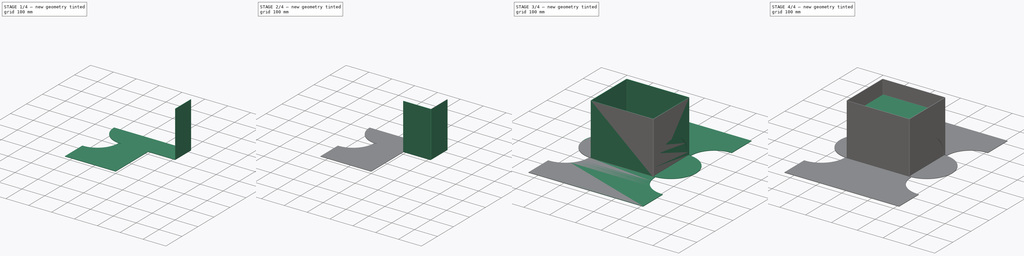
[diagram: build sequence overview — one tinted view per stage of 4, left to right]
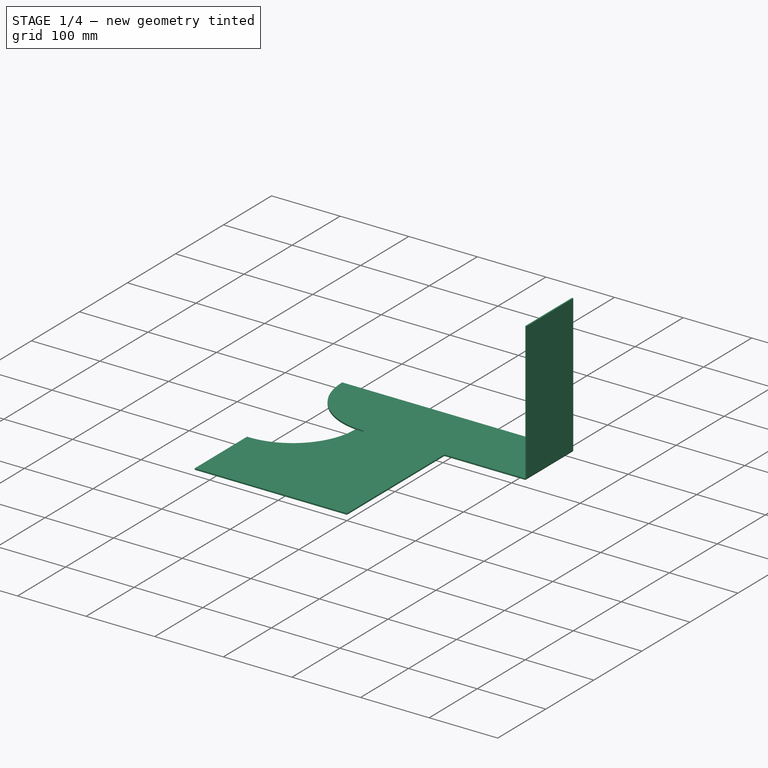
[diagram: stage 1 of 4 — iso view after this stage's code; geometry added in this stage tinted green]
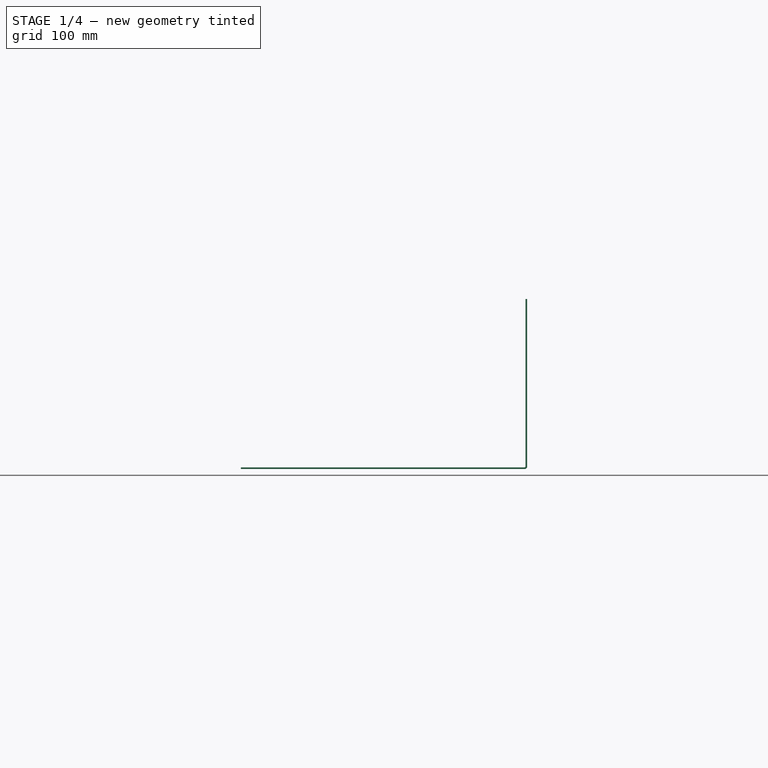
[diagram: stage 1 of 4 — front view after this stage's code; geometry added in this stage tinted green]
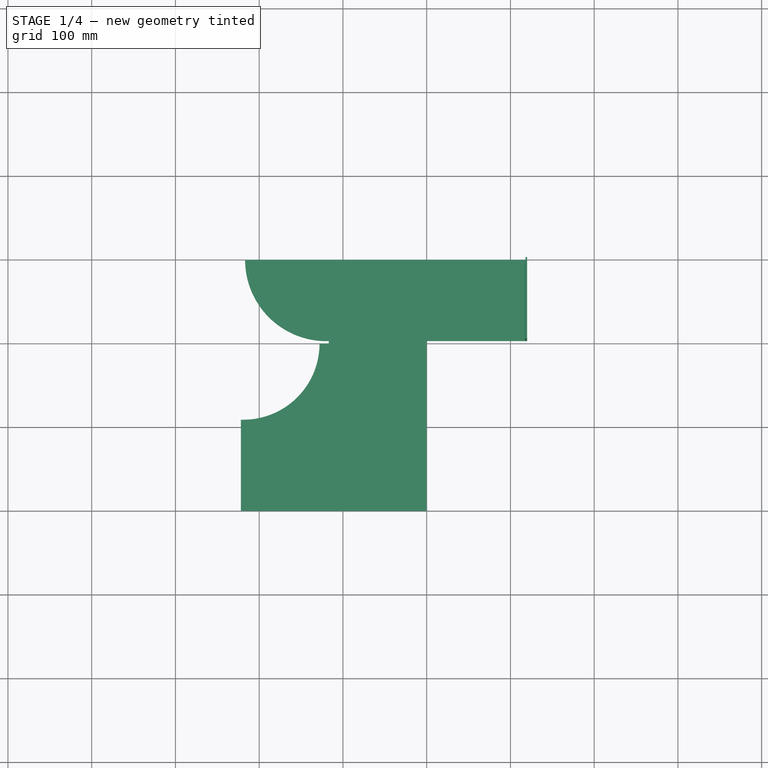
[diagram: stage 1 of 4 — top view after this stage's code; geometry added in this stage tinted green]
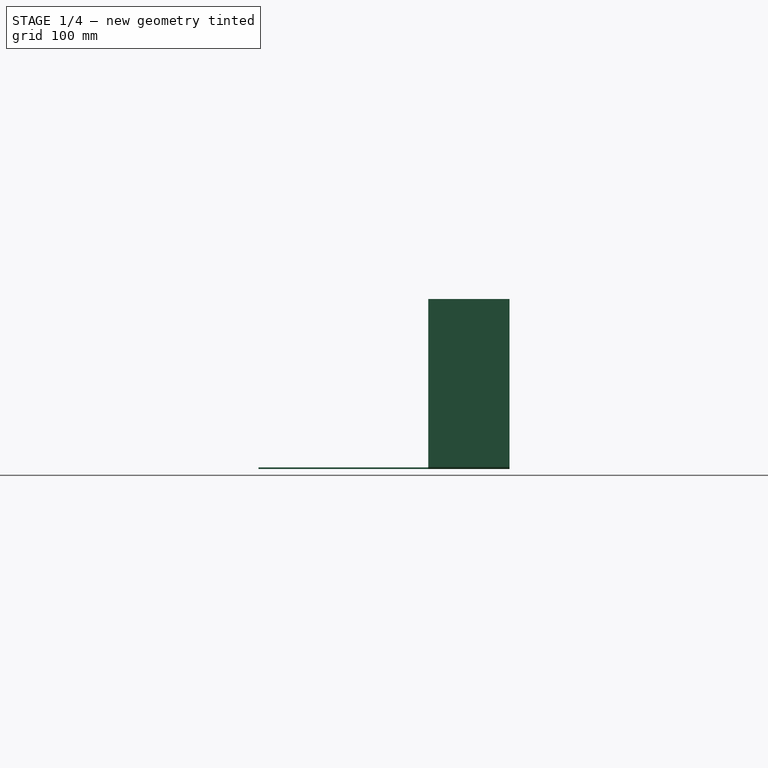
[diagram: stage 1 of 4 — right view after this stage's code; geometry added in this stage tinted green]
FCSTD DOCUMENT  (FreeCAD 1.0R39109 (Git))
Label: lunch bag
License: All rights reserved
objects: PartDesign::FeaturePython×7, Sketcher::SketchObject×5, PartDesign::Body×4, PartDesign::Mirrored×4, PartDesign::Pad×2, PartDesign::MultiTransform×2, TechDraw::DrawSVGTemplate×2, TechDraw::DrawProjGroupItem×2, TechDraw::DrawPage×2, PartDesign::Fillet×1, PartDesign::SubShapeBinder×1, PartDesign::FeatureBase×1
note: 52 computed .brp shape members not serialized (recipe doc carries the construction recipe); baked Part::Feature solids carry a one-line shape summary decoded from their .brp

FEATURE [PartDesign::Body] Body
  AllowCompound = true
  Group = -> [Sketch,Pad,Fillet]
  Origin = -> Origin
  Tip = -> Fillet
FEATURE [Sketcher::SketchObject] Sketch001
  ArcFitTolerance = 1e-06
  AttachmentSupport = -> [YZ_Plane001]
  FullyConstrained = true
  MakeInternals = false
  MapMode = 5
  Placement = pos=(0,0,0) rot=(0.57735,0.57735,0.57735;2.0944rad)
  sketch-geometry (1):
    g0: LineSegment StartX=0 StartY=0 StartZ=0 EndX=-97 EndY=0 EndZ=0
  constraints (3):
    c: Coincident(g0,g-1)
    c: PointOnObject(g0,g-1)
    c: DistanceX(g0,g0) = 97
FEATURE [PartDesign::FeaturePython] BaseBend  # WARN: FeaturePython — macro-defined, semantics opaque (R4)
  BendSide = 0
  BendSketch = -> Sketch001
  Length = 117
  MidPlane = false
  Radius = 1
  Reverse = false
  Suppressed = false
  Thickness = 2
FEATURE [PartDesign::FeaturePython] Bend  # WARN: FeaturePython — macro-defined, semantics opaque (R4)
  AutoMiter = true
  BaseFeature = -> BaseBend
  BendType = 0
  LengthList = [200]
  LengthSpec = 0
  NonperforationMaxLength = 5
  Perforate = false
  PerforationAngle = 0
  PerforationInitialLength = 5
  PerforationMaxLength = 5
  ReliefFactor = 0.7
  Suppressed = false
  UseReliefFactor = false
  angle = 90
  baseObject = -> BaseBend [Edge9]
  bendAList = [90]
  extend1 = 0
  extend2 = 0
  gap1 = 0
  gap2 = 0
  invert = false
  kfactor = 0.5
  length = 200
  maxExtendDist = 5
  minGap = 0.2
  minReliefGap = 1
  miterangle1 = 0
  miterangle2 = 0
  offset = 0
  radius = 1
  reliefType = 0
  reliefd = 1
  reliefw = 0.8
  sketchflip = false
  sketchinvert = false
  unfold = false
FEATURE [Sketcher::SketchObject] Unfold_Sketch
  ArcFitTolerance = 1e-06
  FullyConstrained = false
  MakeInternals = false
  sketch-geometry (13):
    g0: ArcOfCircle CenterX=-119.827 CenterY=0 CenterZ=0 NormalX=0 NormalY=0 NormalZ=1 AngleXU=1.5708 Radius=97 StartAngle=1.5708 EndAngle=3.14159
    g1: LineSegment StartX=-119.827 StartY=-97 StartZ=0 EndX=-117 EndY=-97 EndZ=0
    g2: LineSegment StartX=-117 StartY=-99.8274 StartZ=0 EndX=-117 EndY=-97 EndZ=0
    g3: LineSegment StartX=-127.927 StartY=-99.8274 StartZ=0 EndX=-117 EndY=-99.8274 EndZ=0
    g4: ArcOfCircle CenterX=-218.927 CenterY=-99.8274 CenterZ=0 NormalX=0 NormalY=0 NormalZ=1 AngleXU=-1e-16 Radius=91 StartAngle=4.71239 EndAngle=6.28319
    g5: LineSegment StartX=-218.927 StartY=-190.827 StartZ=0 EndX=-221.927 EndY=-190.827 EndZ=0
    g6: LineSegment StartX=-221.927 StartY=-299.827 StartZ=0 EndX=-221.927 EndY=-190.827 EndZ=0
    g7: LineSegment StartX=0 StartY=-299.827 StartZ=0 EndX=-221.927 EndY=-299.827 EndZ=0
    g8: LineSegment StartX=0 StartY=0 StartZ=0 EndX=0 EndY=-299.827 EndZ=0
    g9: LineSegment StartX=0 StartY=0 StartZ=0 EndX=-216.827 EndY=0 EndZ=0
    g10: LineSegment StartX=-120.514 StartY=-299.827 StartZ=0 EndX=-120.514 EndY=-99.8274 EndZ=0
    g11: LineSegment StartX=0 StartY=-98.4137 StartZ=0 EndX=-117 EndY=-98.4137 EndZ=0
    g12: LineSegment StartX=-118.414 StartY=0 StartZ=0 EndX=-118.414 EndY=-97 EndZ=0
FEATURE [PartDesign::Body] Body001
  AllowCompound = true
  Group = -> [Sketch001,BaseBend,Bend,Sketch002,ExtrudedCutout,Bend001,Bend002,Sketch003,ExtrudedCutout001,Unfold,Unfold_Sketch]
  Origin = -> Origin001
  Tip = -> Unfold
FEATURE [PartDesign::SubShapeBinder] Binder
  BindCopyOnChange = 0
  BindMode = 0
  ClaimChildren = false
  Context = -> Body001 [Binder.]
  Fuse = false
  MakeFace = true
  OffsetFill = false
  OffsetIntersection = false
  OffsetJoinType = 0
  OffsetOpenResult = false
  PartialLoad = false
  Relative = true
  Support = -> [Unfold_Sketch[Edge9,Edge8,Edge7,Edge6,Edge5,Edge4,Edge3,Edge2]]
  _Version = 2
FEATURE [PartDesign::Pad] Pad001
  Direction = (0,0,1)
  Length = 2
  Length2 = 10
  Profile = -> Binder
  Suppressed = false
  Type = 0
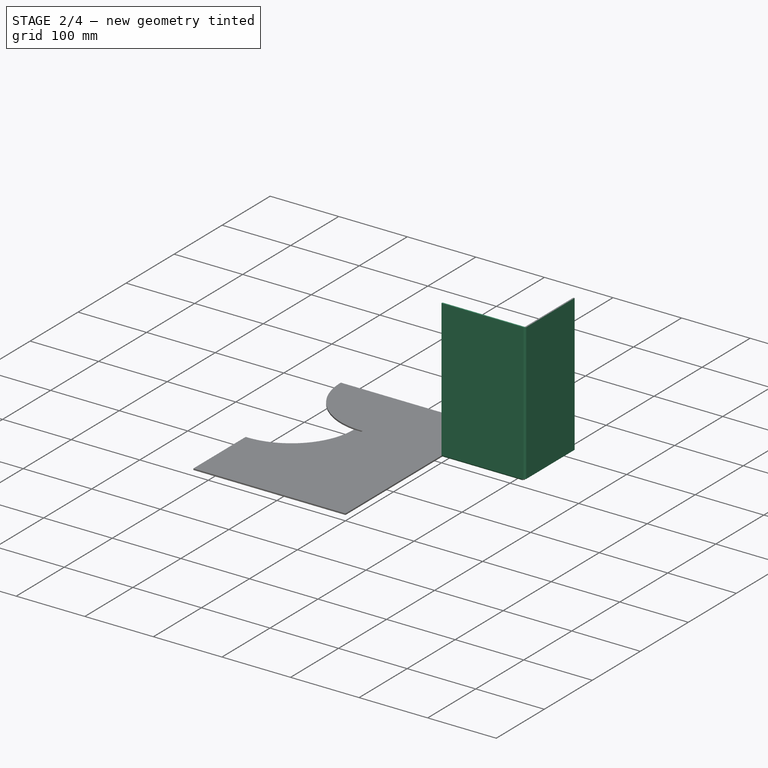
[diagram: stage 2 of 4 — iso view after this stage's code; geometry added in this stage tinted green]
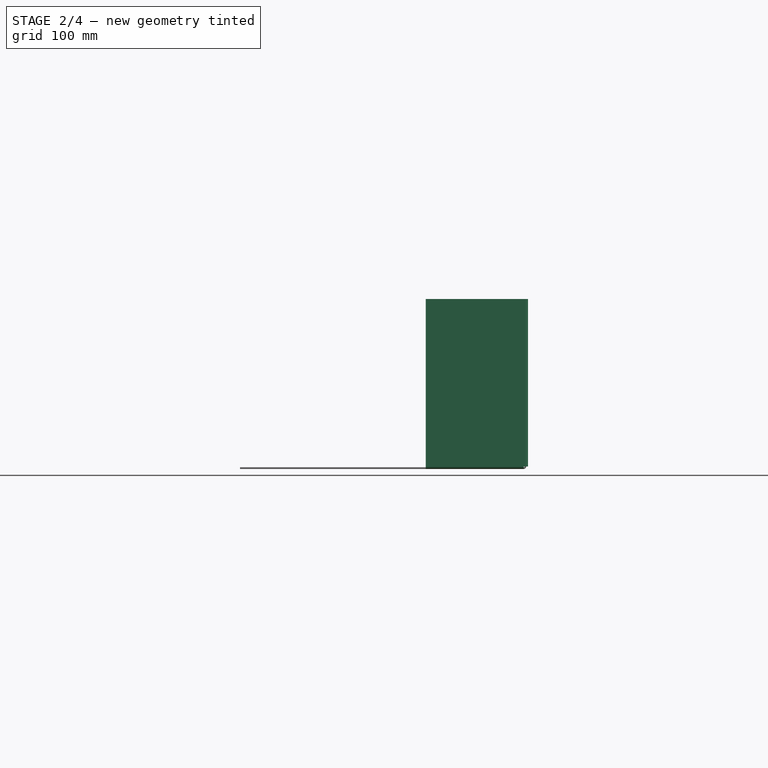
[diagram: stage 2 of 4 — front view after this stage's code; geometry added in this stage tinted green]
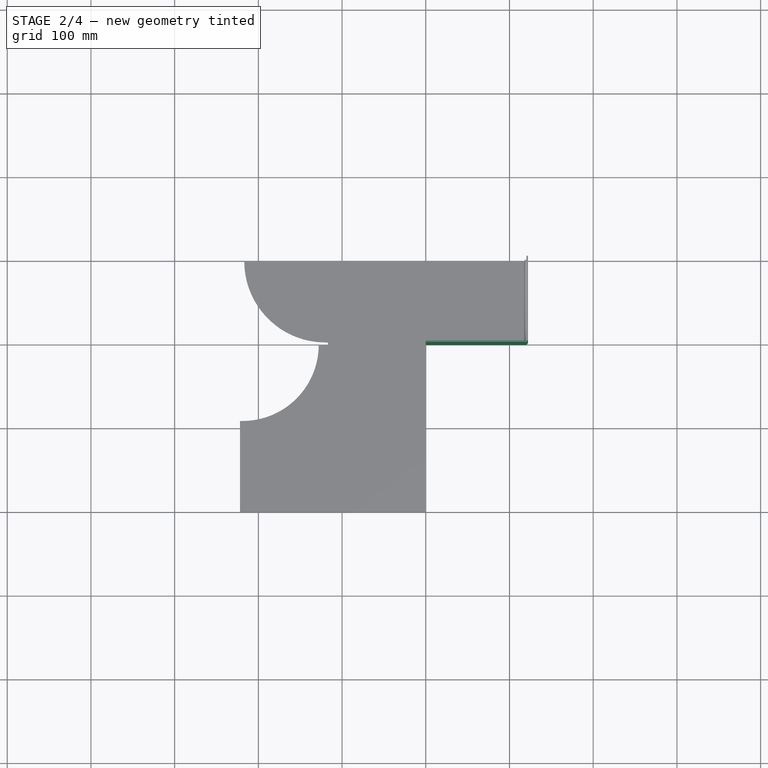
[diagram: stage 2 of 4 — top view after this stage's code; geometry added in this stage tinted green]
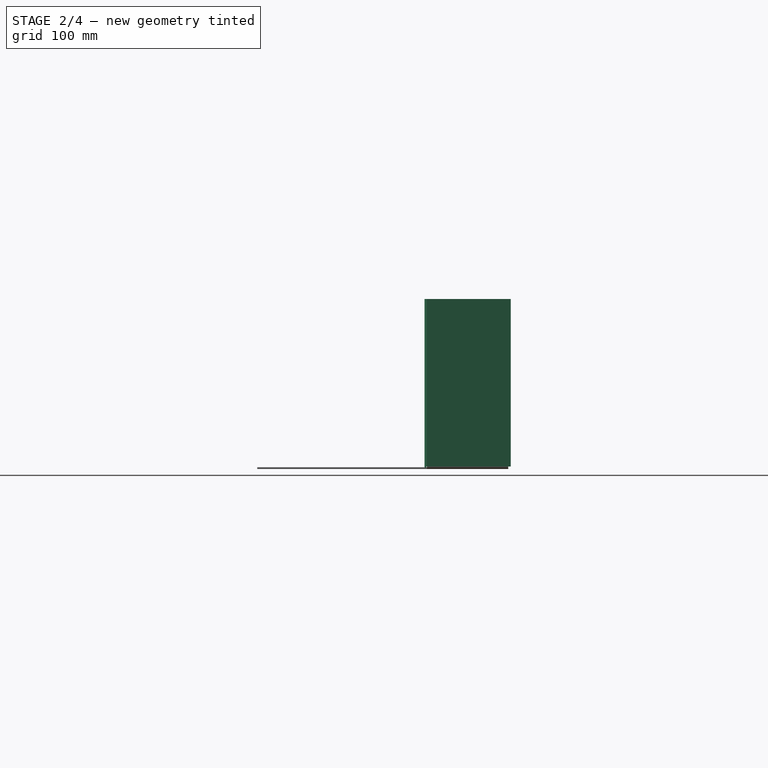
[diagram: stage 2 of 4 — right view after this stage's code; geometry added in this stage tinted green]
FEATURE [Sketcher::SketchObject] Sketch002
  ArcFitTolerance = 1e-06
  AttachmentSupport = -> [Bend]
  ExternalGeometry = -> [Bend]
  FullyConstrained = true
  MakeInternals = false
  MapMode = 5
  Placement = pos=(120,0,-1.33e-14) rot=(0.57735,0.57735,0.57735;2.0944rad)
  sketch-geometry (4):
    g0: ArcOfCircle CenterX=0 CenterY=3 CenterZ=0 NormalX=0 NormalY=0 NormalZ=1 AngleXU=0 Radius=97 StartAngle=1.5708 EndAngle=3.14159
    g1: LineSegment StartX=5.9e-15 StartY=100 StartZ=0 EndX=0 EndY=203 EndZ=0
    g2: LineSegment StartX=0 StartY=203 StartZ=0 EndX=-97 EndY=203 EndZ=0
    g3: LineSegment StartX=-97 StartY=203 StartZ=0 EndX=-97 EndY=3 EndZ=0
  constraints (9):
    c: Coincident(g0,g-3)
    c: Coincident(g0,g-3)
    c: PointOnObject(g0,g-2)
    c: Coincident(g1,g0)
    c: Coincident(g1,g-4)
    c: Coincident(g2,g1)
    c: Coincident(g2,g-4)
    c: Coincident(g3,g2)
    c: Coincident(g3,g0)
FEATURE [PartDesign::FeaturePython] ExtrudedCutout  # WARN: FeaturePython — macro-defined, semantics opaque (R4)
  BaseFeature = -> Bend
  CutSide = 0
  CutType = 2
  ExtrusionLength1 = 500
  ExtrusionLength2 = 500
  ImproveCut = false
  ImproveLevel = 4
  Sketch = -> Sketch002
  Suppressed = false
  baseObject = -> Bend [Face9]
FEATURE [PartDesign::FeaturePython] Bend001  # WARN: FeaturePython — macro-defined, semantics opaque (R4)
  AutoMiter = true
  BaseFeature = -> ExtrudedCutout
  BendType = 0
  LengthList = [200]
  LengthSpec = 0
  NonperforationMaxLength = 5
  Perforate = false
  PerforationAngle = 0
  PerforationInitialLength = 5
  PerforationMaxLength = 5
  ReliefFactor = 0.7
  Suppressed = false
  UseReliefFactor = false
  angle = 90
  baseObject = -> ExtrudedCutout [Edge9]
  bendAList = [90]
  extend1 = 0
  extend2 = 2.1
  gap1 = 0
  gap2 = 0
  invert = false
  kfactor = 0.5
  length = 200
  maxExtendDist = 5
  minGap = 0.2
  minReliefGap = 1
  miterangle1 = 0
  miterangle2 = 0
  offset = 0
  radius = 1
  reliefType = 0
  reliefd = 1
  reliefw = 0.8
  sketchflip = false
  sketchinvert = false
  unfold = false
FEATURE [PartDesign::FeaturePython] Bend002  # WARN: FeaturePython — macro-defined, semantics opaque (R4)
  AutoMiter = true
  BaseFeature = -> Bend001
  BendType = 0
  LengthList = [100]
  LengthSpec = 0
  NonperforationMaxLength = 5
  Perforate = false
  PerforationAngle = 0
  PerforationInitialLength = 5
  PerforationMaxLength = 5
  ReliefFactor = 0.7
  Suppressed = false
  UseReliefFactor = false
  angle = 90
  baseObject = -> Bend001 [Edge43]
  bendAList = [90]
  extend1 = 0
  extend2 = 0
  gap1 = 0
  gap2 = 0
  invert = false
  kfactor = 0.5
  length = 100
  maxExtendDist = 5
  minGap = 0.2
  minReliefGap = 1
  miterangle1 = 0
  miterangle2 = 0
  offset = 0
  radius = 1
  reliefType = 0
  reliefd = 1
  reliefw = 0.8
  sketchflip = false
  sketchinvert = false
  unfold = false
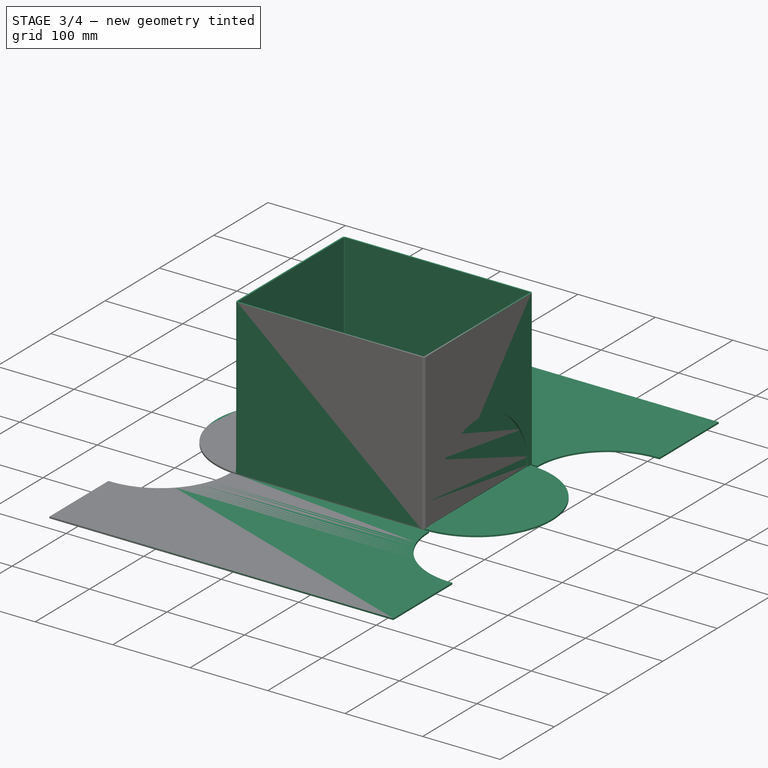
[diagram: stage 3 of 4 — iso view after this stage's code; geometry added in this stage tinted green]
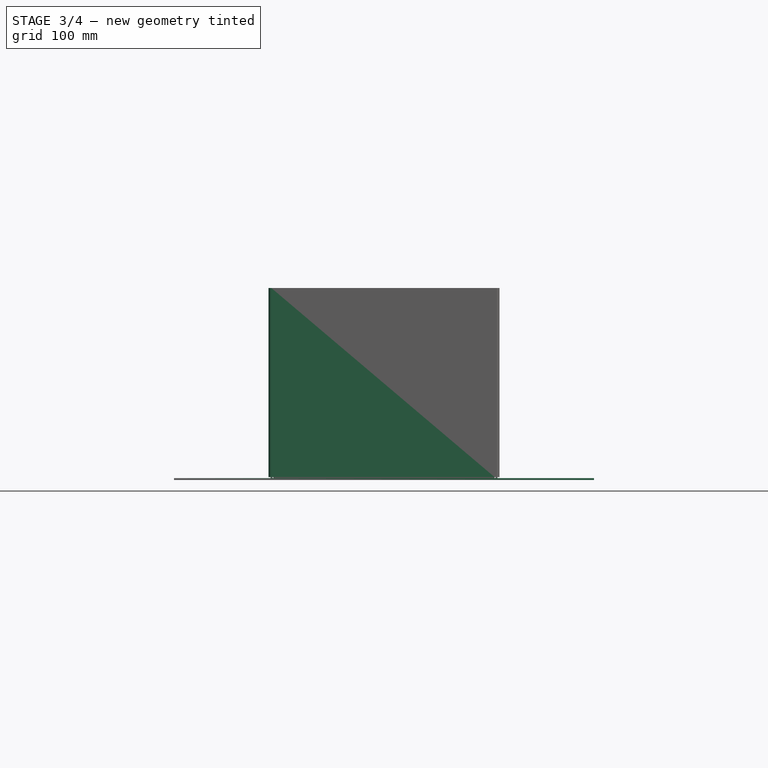
[diagram: stage 3 of 4 — front view after this stage's code; geometry added in this stage tinted green]
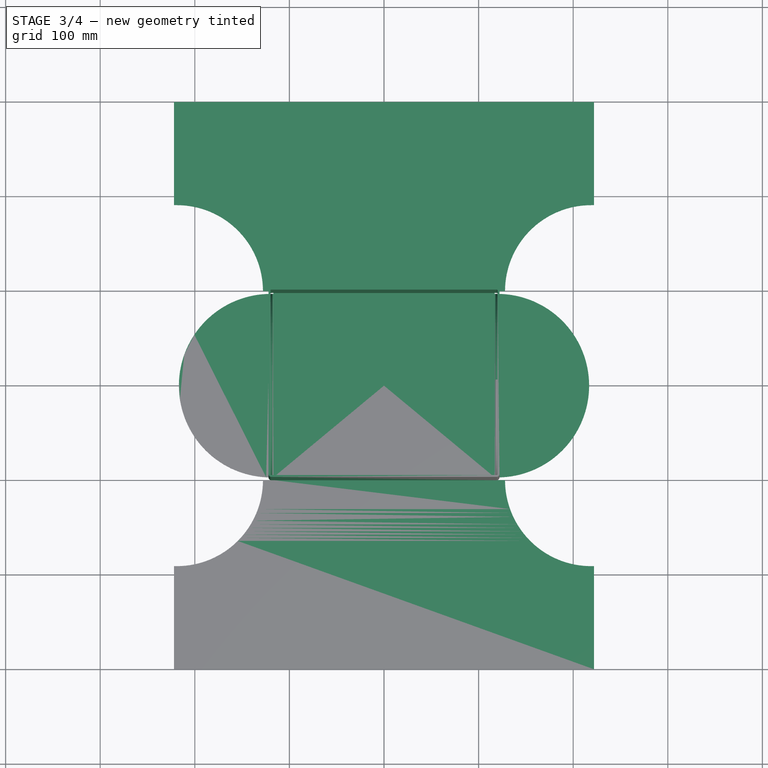
[diagram: stage 3 of 4 — top view after this stage's code; geometry added in this stage tinted green]
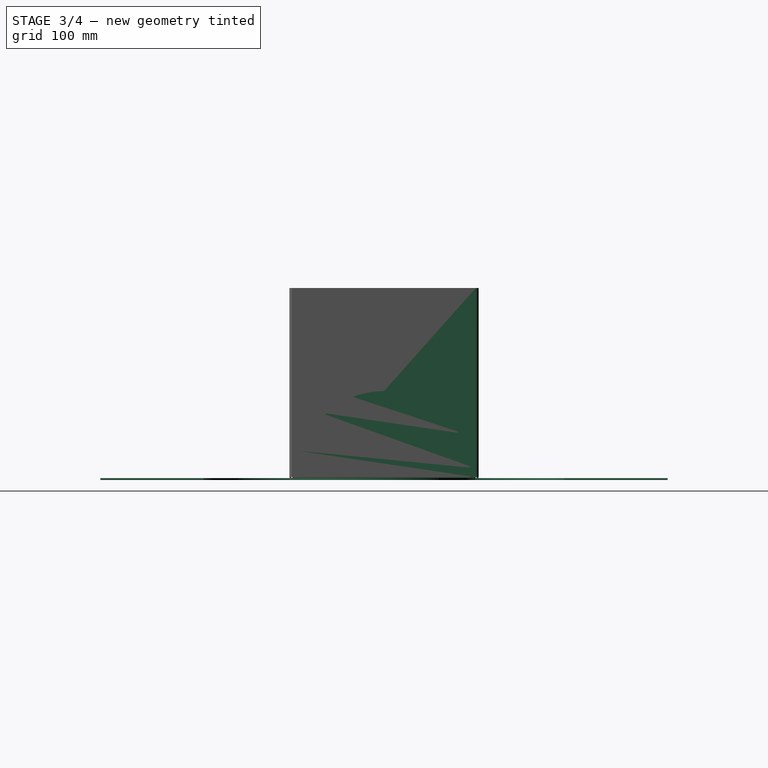
[diagram: stage 3 of 4 — right view after this stage's code; geometry added in this stage tinted green]
FEATURE [Sketcher::SketchObject] Sketch003
  ArcFitTolerance = 1e-06
  AttachmentSupport = -> [Bend002]
  ExternalGeometry = -> [Sketch002,Bend002]
  FullyConstrained = true
  MakeInternals = false
  MapMode = 5
  Placement = pos=(120.1,-1.33e-14,8.5e-15) rot=(0.57735,-0.57735,-0.57735;2.0944rad)
  sketch-geometry (5):
    g0: LineSegment StartX=91 StartY=3 StartZ=0 EndX=-1.42e-14 EndY=3 EndZ=0
    g1: LineSegment StartX=-1.42e-14 StartY=3 StartZ=0 EndX=-3 EndY=3 EndZ=0
    g2: LineSegment StartX=-3 StartY=3 StartZ=0 EndX=-3 EndY=94 EndZ=0
    g3: LineSegment StartX=-3 StartY=94 StartZ=0 EndX=-8.4e-15 EndY=94 EndZ=0
    g4: ArcOfCircle CenterX=-1.42e-14 CenterY=3 CenterZ=0 NormalX=0 NormalY=0 NormalZ=1 AngleXU=0 Radius=91 StartAngle=0 EndAngle=1.5708
  constraints (15):
    c: Coincident(g2,g1)
    c: Vertical(g2)
    c: Coincident(g3,g2)
    c: Horizontal(g3)
    c: Horizontal(g1)
    c: PointOnObject(g2,g-4)
    c: PointOnObject(g3,g-2)
    c: Distance(g3,g3) = 3
    c: Coincident(g4,g0)
    c: Coincident(g4,g0)
    c: Coincident(g4,g3)
    c: Horizontal(g0)
    c: Coincident(g0,g1)
    c: Coincident(g0,g-3)
    c: Distance(g0,g-3) = 6
FEATURE [PartDesign::FeaturePython] ExtrudedCutout001  # WARN: FeaturePython — macro-defined, semantics opaque (R4)
  BaseFeature = -> Bend002
  CutSide = 0
  CutType = 4
  ExtrusionLength1 = 500
  ExtrusionLength2 = 500
  ImproveCut = false
  ImproveLevel = 4
  Sketch = -> Sketch003
  Suppressed = false
  baseObject = -> Bend002 [Face30]
FEATURE [PartDesign::Mirrored] Mirrored
  MirrorPlane = -> YZ_Plane002
  Suppressed = false
  TransformMode = 0
FEATURE [PartDesign::Mirrored] Mirrored001
  MirrorPlane = -> XZ_Plane002
  Suppressed = false
  TransformMode = 0
FEATURE [PartDesign::MultiTransform] MultiTransform
  BaseFeature = -> Pad001
  Refine = true
  Suppressed = false
  TransformMode = 1
  Transformations = -> [Mirrored,Mirrored001]
FEATURE [PartDesign::Body] Body002
  AllowCompound = true
  Group = -> [Binder,Pad001,MultiTransform,Mirrored,Mirrored001]
  Origin = -> Origin002
  Tip = -> MultiTransform
FEATURE [TechDraw::DrawSVGTemplate] Template
  Height = 297
  Orientation = 1
  Template = /Applications/FreeCAD.app/Contents/Resources/share/Mod/TechDraw/Templates/A3_Landscape_blank.svg
  Width = 420
FEATURE [PartDesign::FeatureBase] Clone
  BaseFeature = -> ExtrudedCutout001
  Suppressed = false
FEATURE [PartDesign::Mirrored] Mirrored002
  MirrorPlane = -> YZ_Plane004
  Suppressed = false
  TransformMode = 0
FEATURE [PartDesign::Mirrored] Mirrored003
  MirrorPlane = -> XZ_Plane004
  Suppressed = false
  TransformMode = 0
FEATURE [PartDesign::MultiTransform] MultiTransform001
  BaseFeature = -> Clone
  Refine = true
  Suppressed = false
  TransformMode = 1
  Transformations = -> [Mirrored002,Mirrored003]
FEATURE [PartDesign::Body] Body004
  AllowCompound = true
  Group = -> [Clone,MultiTransform001,Mirrored002,Mirrored003]
  Origin = -> Origin004
  Tip = -> MultiTransform001
FEATURE [TechDraw::DrawProjGroupItem] View
  CoarseView = false
  Direction = (0,0,1)
  Focus = 100
  HardHidden = false
  IsoCount = 0
  IsoHidden = false
  IsoVisible = false
  LockPosition = false
  Perspective = false
  Rotation = 0
  RotationVector = (1,0,0)
  ScaleType = 0
  ScrubCount = 1
  SeamHidden = false
  SeamVisible = false
  SmoothHidden = false
  SmoothVisible = true
  Source = -> [Pad001]
  Type = 0
  X = 210
  XDirection = (1e-16,1,0)
  Y = 148.5
FEATURE [TechDraw::DrawPage] Page
  KeepUpdated = true
  NextBalloonIndex = 1
  ProjectionType = 0
  Template = -> Template
  Views = -> [View]
FEATURE [TechDraw::DrawSVGTemplate] Template001
  Height = 297
  Orientation = 1
  Template = /Applications/FreeCAD.app/Contents/Resources/share/Mod/TechDraw/Templates/A3_Landscape_blank.svg
  Width = 420
FEATURE [TechDraw::DrawProjGroupItem] View001
  CoarseView = false
  Direction = (0,0,-1)
  Focus = 100
  HardHidden = false
  IsoCount = 0
  IsoHidden = false
  IsoVisible = false
  LockPosition = false
  Perspective = false
  Rotation = 0
  RotationVector = (1,0,0)
  ScaleType = 0
  ScrubCount = 1
  SeamHidden = false
  SeamVisible = false
  SmoothHidden = false
  SmoothVisible = true
  Source = -> [Pad001]
  Type = 0
  X = 210
  XDirection = (1e-16,-1,0)
  Y = 148.5
FEATURE [TechDraw::DrawPage] Page001
  KeepUpdated = true
  NextBalloonIndex = 1
  ProjectionType = 0
  Template = -> Template001
  Views = -> [View001]
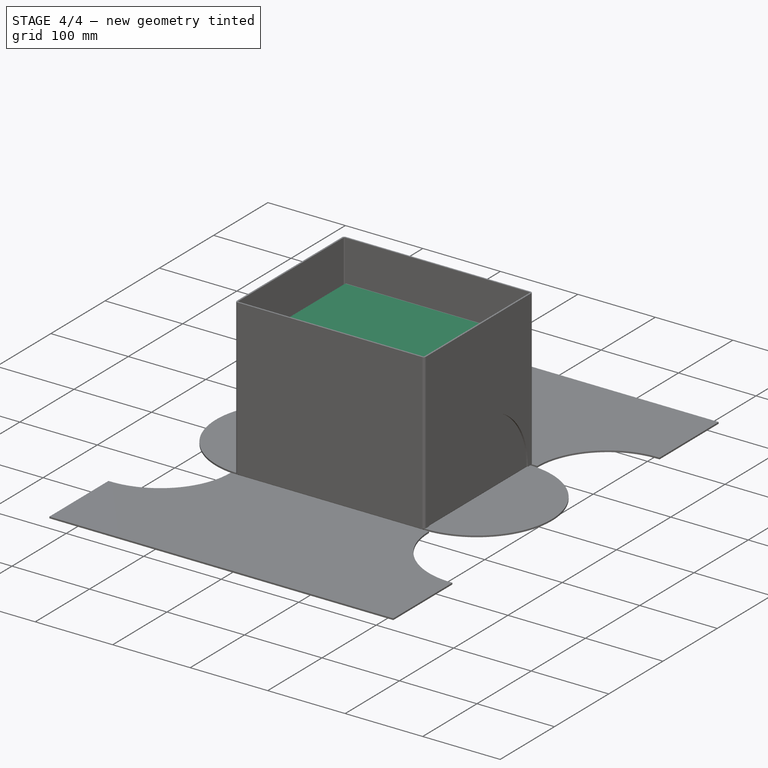
[diagram: stage 4 of 4 — iso view after this stage's code; geometry added in this stage tinted green]
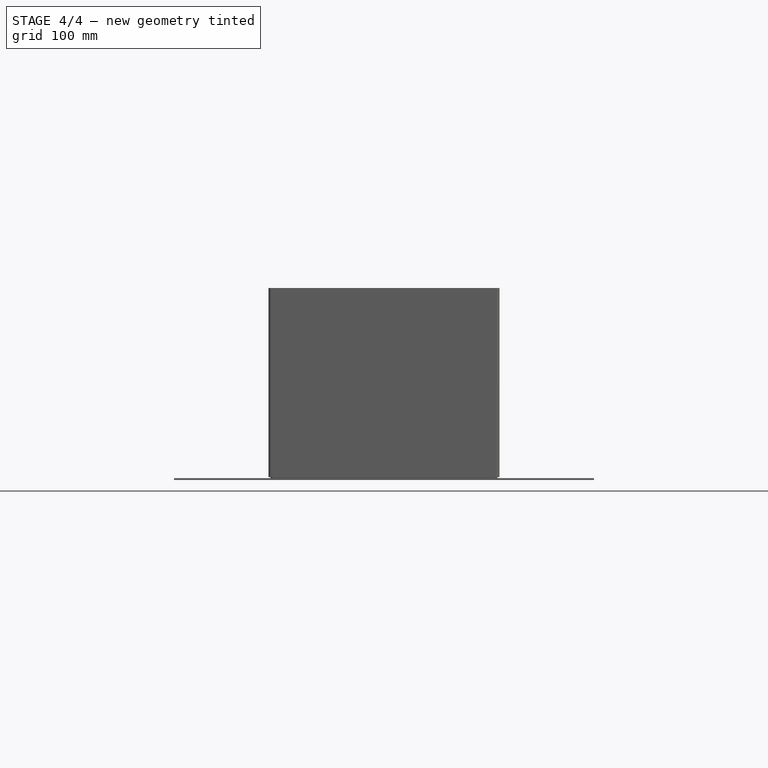
[diagram: stage 4 of 4 — front view after this stage's code; geometry added in this stage tinted green]
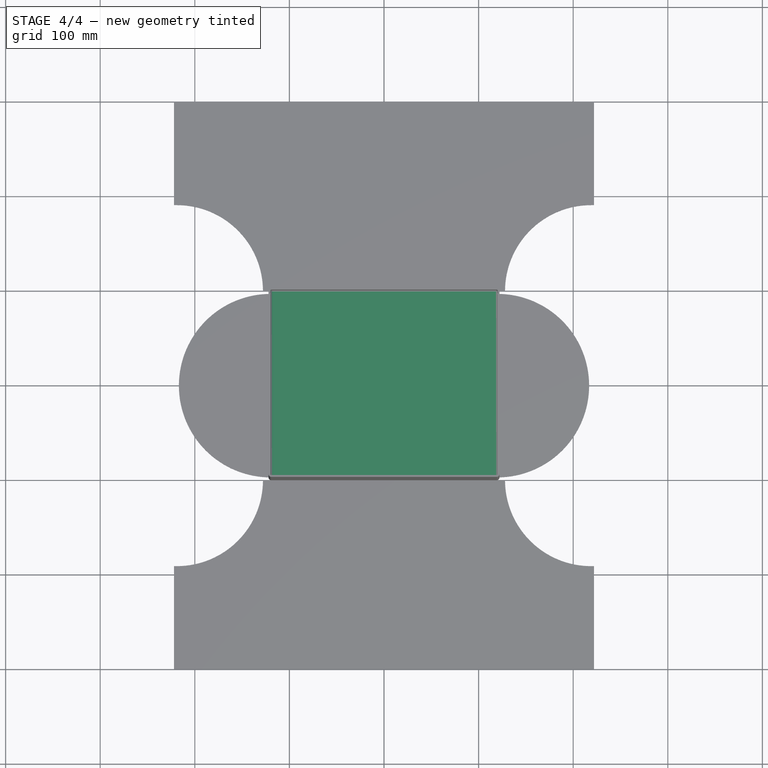
[diagram: stage 4 of 4 — top view after this stage's code; geometry added in this stage tinted green]
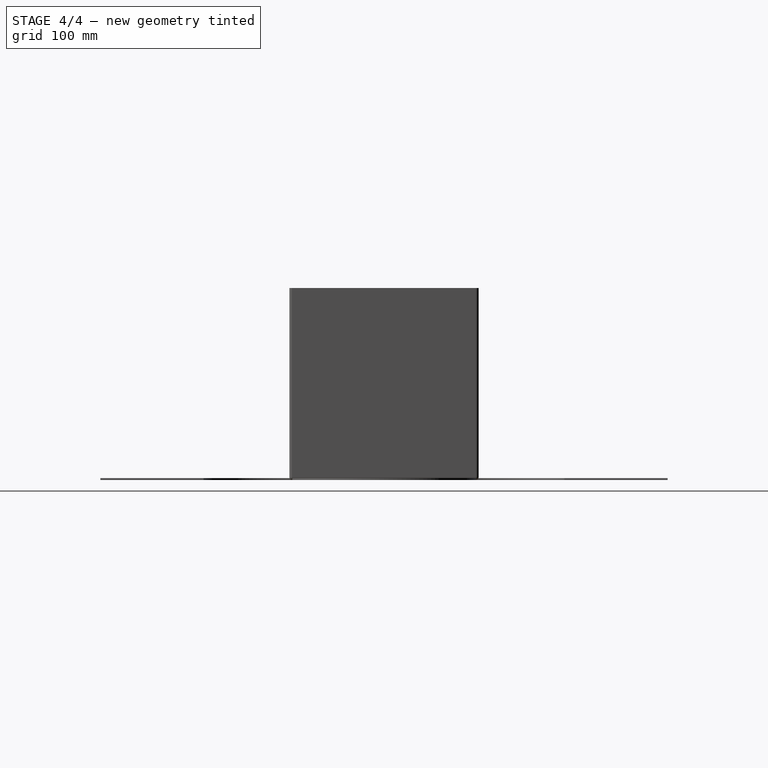
[diagram: stage 4 of 4 — right view after this stage's code; geometry added in this stage tinted green]
FEATURE [Sketcher::SketchObject] Sketch
  ArcFitTolerance = 1e-06
  AttachmentSupport = -> [XY_Plane]
  FullyConstrained = true
  MakeInternals = false
  MapMode = 5
  sketch-geometry (5):
    g0: LineSegment StartX=-120 StartY=-100 StartZ=0 EndX=120 EndY=-100 EndZ=0
    g1: LineSegment StartX=120 StartY=-100 StartZ=0 EndX=120 EndY=100 EndZ=0
    g2: LineSegment StartX=120 StartY=100 StartZ=0 EndX=-120 EndY=100 EndZ=0
    g3: LineSegment StartX=-120 StartY=100 StartZ=0 EndX=-120 EndY=-100 EndZ=0
    g4: GeomPoint [constr] X=0 Y=0 Z=0
  constraints (12):
    c: Coincident(g0,g1)
    c: Coincident(g1,g2)
    c: Coincident(g2,g3)
    c: Coincident(g3,g0)
    c: Horizontal(g0)
    c: Horizontal(g2)
    c: Vertical(g1)
    c: Vertical(g3)
    c: Symmetric(g2,g0,g4)
    c: Coincident(g4,g-1)
    c: DistanceX(g0,g0) = 240
    c: DistanceY(g1,g1) = 200
FEATURE [PartDesign::Pad] Pad
  Direction = (0,0,1)
  Length = 150
  Length2 = 10
  Profile = -> Sketch
  ReferenceAxis = -> Sketch [N_Axis]
  Suppressed = false
  Type = 0
FEATURE [PartDesign::Fillet] Fillet
  Base = -> Pad
  BaseFeature = -> Pad
  Radius = 3
  SupportTransform = false
  Suppressed = false
  UseAllEdges = true
FEATURE [PartDesign::FeaturePython] Unfold  # WARN: FeaturePython — macro-defined, semantics opaque (R4)
  BaseFeature = -> ExtrudedCutout001
  GenerateSketch = true
  KFactor = 0.4
  KFactorStandard = 0
  ManualRecompute = false
  MaterialSheet = _manual
  SeparateSketchLayers = false
  Suppressed = false
  UnfoldSketches = Unfold_Sketch
  baseObject = -> ExtrudedCutout001 [Face1]
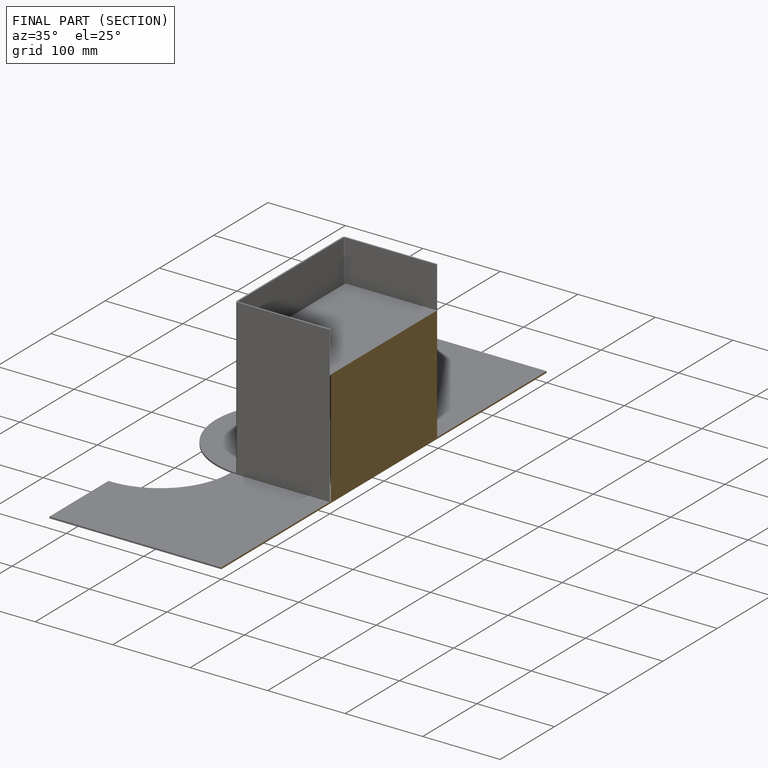
[diagram: finished part — half-section view (interior)]
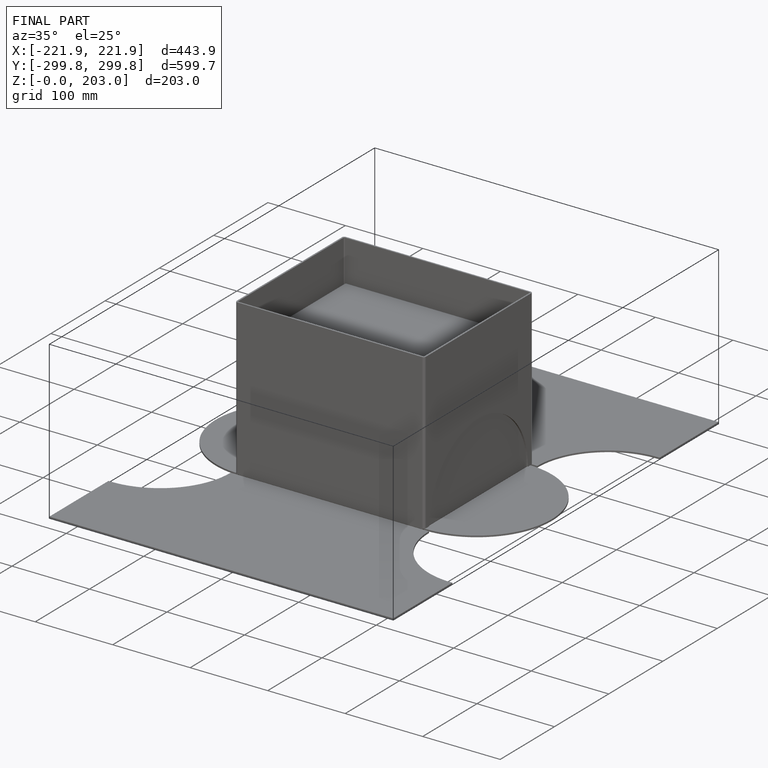
[diagram: finished part — iso view with bounding-box wireframe]
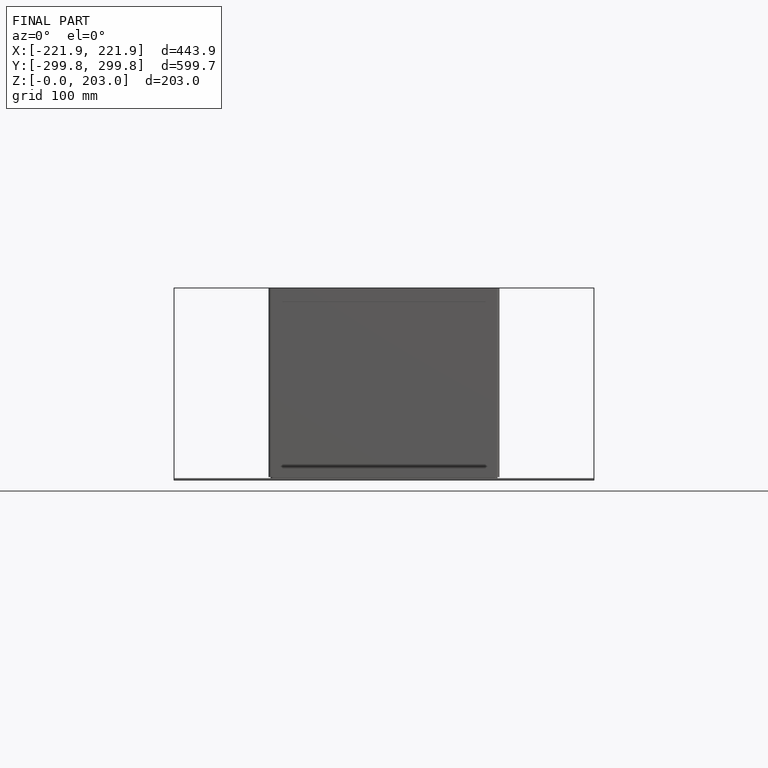
[diagram: finished part — front view with bounding-box wireframe]
